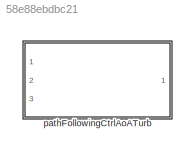
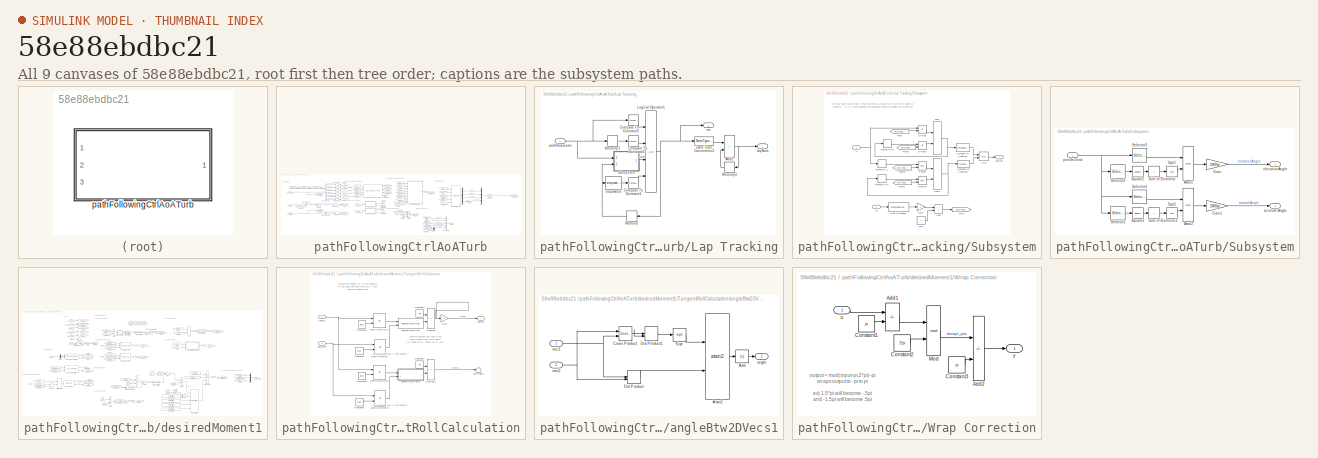
[diagram: thumbnail index - all 9 canvases of the model, root first then tree order]
MODEL slx_58e88ebdbc21
KIND library
CONFIG AbsTol = auto
CONFIG EnableMultiTasking = off
CONFIG FixedStep = auto
CONFIG MaxStep = auto
CONFIG MinStep = auto
CONFIG RelTol = 1e-3
CONFIG SampleTimeConstraint = Unconstrained
CONFIG SolverName = VariableStepAuto
CONFIG StartTime = 0.0
CONFIG StopTime = 10.0
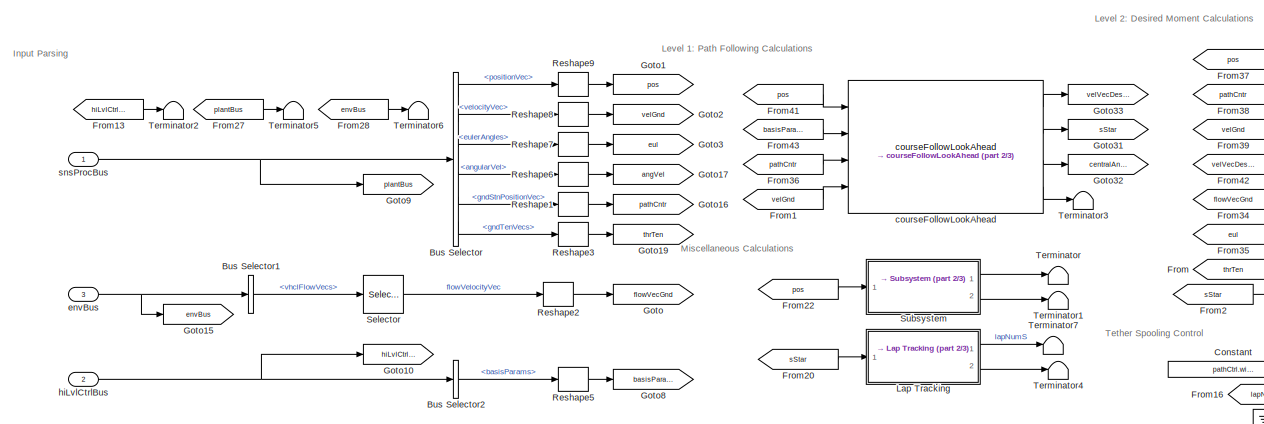
[diagram: pathFollowingCtrlAoATurb - part 1/3, middle left region]
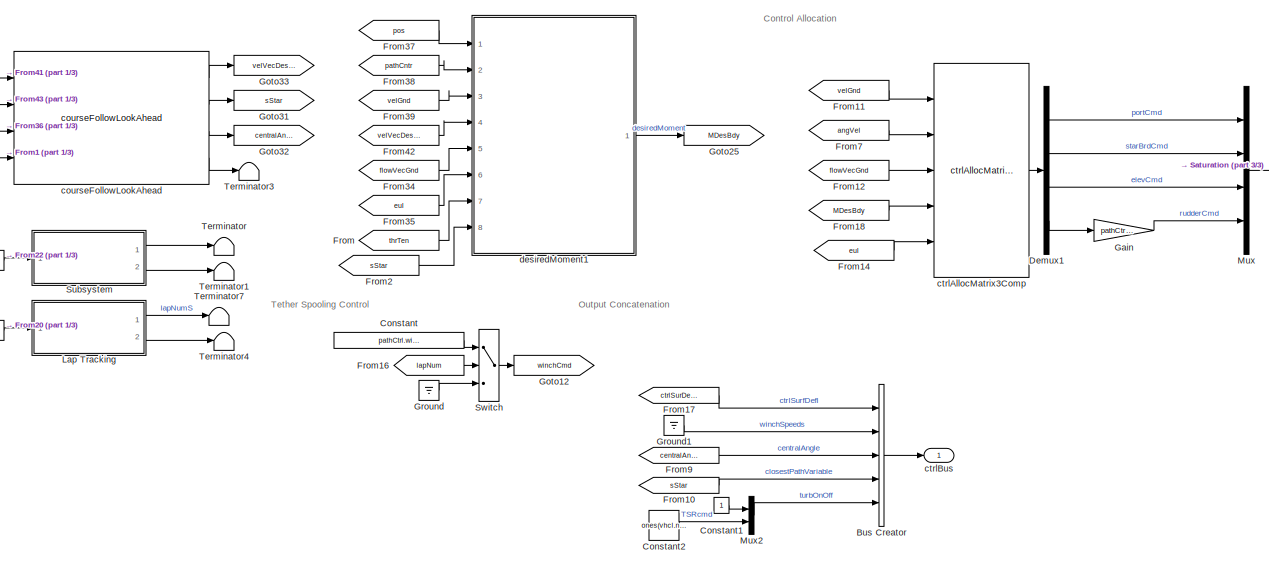
[diagram: pathFollowingCtrlAoATurb - part 2/3, center side, full height]
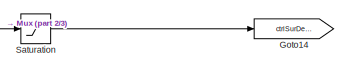
[diagram: pathFollowingCtrlAoATurb - part 3/3, middle right region]
BLOCK [SubSystem] pathFollowingCtrlAoATurb
  InitFcn = initializeBussesFromBlock(gcb)
  LoadFcn = initializeBussesFromBlock(gcb)
  MinAlgLoopOccurrences = on
  Ports = [3, 1]
  RequestExecContextInheritance = off
  StartFcn = initializeBussesFromBlock(gcb)
  VariantControl = strcmpi(FLIGHTCONTROLLER,'pathFollowingControllerManta')
BLOCK [BusCreator] pathFollowingCtrlAoATurb/Bus Creator
  DisplayOption = bar
  InheritFromInputs = on
  Inputs = 5
  Ports = [5, 1]
BLOCK [BusSelector] pathFollowingCtrlAoATurb/Bus Selector
  OutputSignals = positionVec,velocityVec,eulerAngles,angularVel,gndStnPositionVec,gndTenVecs
  Ports = [1, 6]
BLOCK [BusSelector] pathFollowingCtrlAoATurb/Bus Selector1
  OutputSignals = vhclFlowVecs
  Ports = [1, 1]
BLOCK [BusSelector] pathFollowingCtrlAoATurb/Bus Selector2
  OutputSignals = basisParams
  Ports = [1, 1]
BLOCK [Constant] pathFollowingCtrlAoATurb/Constant
  Commented = on
  Value = pathCtrl.winchSpeedIn.Value
BLOCK [Constant] pathFollowingCtrlAoATurb/Constant1
BLOCK [Constant] pathFollowingCtrlAoATurb/Constant2
  Value = ones(vhcl.numTurbines.Value,1)
BLOCK [Demux] pathFollowingCtrlAoATurb/Demux1
  Ports = [1, 4]
BLOCK [From] pathFollowingCtrlAoATurb/From
  GotoTag = thrTen
BLOCK [From] pathFollowingCtrlAoATurb/From1
  GotoTag = velGnd
BLOCK [From] pathFollowingCtrlAoATurb/From10
  GotoTag = sStar
BLOCK [From] pathFollowingCtrlAoATurb/From11
  GotoTag = velGnd
BLOCK [From] pathFollowingCtrlAoATurb/From12
  GotoTag = flowVecGnd
BLOCK [From] pathFollowingCtrlAoATurb/From13
  GotoTag = hiLvlCtrlBus
BLOCK [From] pathFollowingCtrlAoATurb/From14
  GotoTag = eul
BLOCK [From] pathFollowingCtrlAoATurb/From16
  Commented = on
  GotoTag = lapNum
BLOCK [From] pathFollowingCtrlAoATurb/From17
  GotoTag = ctrlSurDefl
BLOCK [From] pathFollowingCtrlAoATurb/From18
  GotoTag = MDesBdy
BLOCK [From] pathFollowingCtrlAoATurb/From2
  GotoTag = sStar
BLOCK [From] pathFollowingCtrlAoATurb/From20
  GotoTag = sStar
BLOCK [From] pathFollowingCtrlAoATurb/From22
  GotoTag = pos
BLOCK [From] pathFollowingCtrlAoATurb/From27
  GotoTag = plantBus
BLOCK [From] pathFollowingCtrlAoATurb/From28
  GotoTag = envBus
BLOCK [From] pathFollowingCtrlAoATurb/From34
  GotoTag = flowVecGnd
BLOCK [From] pathFollowingCtrlAoATurb/From35
  GotoTag = eul
BLOCK [From] pathFollowingCtrlAoATurb/From36
  GotoTag = pathCntr
BLOCK [From] pathFollowingCtrlAoATurb/From37
  GotoTag = pos
BLOCK [From] pathFollowingCtrlAoATurb/From38
  GotoTag = pathCntr
BLOCK [From] pathFollowingCtrlAoATurb/From39
  GotoTag = velGnd
BLOCK [From] pathFollowingCtrlAoATurb/From41
  GotoTag = pos
BLOCK [From] pathFollowingCtrlAoATurb/From42
  GotoTag = velVecDesGnd
BLOCK [From] pathFollowingCtrlAoATurb/From43
  GotoTag = basisParams
BLOCK [From] pathFollowingCtrlAoATurb/From7
  GotoTag = angVel
BLOCK [From] pathFollowingCtrlAoATurb/From9
  GotoTag = centralAngle
BLOCK [Gain] pathFollowingCtrlAoATurb/Gain
  Gain = pathCtrl.rudderGain.Value
BLOCK [Goto] pathFollowingCtrlAoATurb/Goto
  GotoTag = flowVecGnd
BLOCK [Goto] pathFollowingCtrlAoATurb/Goto1
  GotoTag = pos
BLOCK [Goto] pathFollowingCtrlAoATurb/Goto10
  GotoTag = hiLvlCtrlBus
BLOCK [Goto] pathFollowingCtrlAoATurb/Goto12
  Commented = on
  GotoTag = winchCmd
BLOCK [Goto] pathFollowingCtrlAoATurb/Goto14
  GotoTag = ctrlSurDefl
BLOCK [Goto] pathFollowingCtrlAoATurb/Goto15
  GotoTag = envBus
BLOCK [Goto] pathFollowingCtrlAoATurb/Goto16
  GotoTag = pathCntr
BLOCK [Goto] pathFollowingCtrlAoATurb/Goto17
  GotoTag = angVel
BLOCK [Goto] pathFollowingCtrlAoATurb/Goto19
  GotoTag = thrTen
BLOCK [Goto] pathFollowingCtrlAoATurb/Goto2
  GotoTag = velGnd
BLOCK [Goto] pathFollowingCtrlAoATurb/Goto25
  GotoTag = MDesBdy
BLOCK [Goto] pathFollowingCtrlAoATurb/Goto3
  GotoTag = eul
BLOCK [Goto] pathFollowingCtrlAoATurb/Goto31
  GotoTag = sStar
BLOCK [Goto] pathFollowingCtrlAoATurb/Goto32
  GotoTag = centralAngle
BLOCK [Goto] pathFollowingCtrlAoATurb/Goto33
  GotoTag = velVecDesGnd
BLOCK [Goto] pathFollowingCtrlAoATurb/Goto8
  GotoTag = basisParams
BLOCK [Goto] pathFollowingCtrlAoATurb/Goto9
  GotoTag = plantBus
BLOCK [Ground] pathFollowingCtrlAoATurb/Ground
  Commented = on
BLOCK [Ground] pathFollowingCtrlAoATurb/Ground1
BLOCK [SubSystem] pathFollowingCtrlAoATurb/Lap Tracking
  Ports = [1, 2]
  RequestExecContextInheritance = off
BLOCK [Sum] pathFollowingCtrlAoATurb/Lap Tracking/Add2
  IconShape = rectangular
  Ports = [2, 1]
BLOCK [Reference] pathFollowingCtrlAoATurb/Lap Tracking/Compare To Constant1  REF=simulink/Logic and Bit
Operations/Compare
To Constant
  Ports = [1, 1]
  SourceBlock = simulink/Logic and Bit\nOperations/Compare\nTo Constant
  SourceProductBaseCode = SL
  SourceType = Compare To Constant
BLOCK [Reference] pathFollowingCtrlAoATurb/Lap Tracking/Compare To Constant3  REF=simulink/Logic and Bit
Operations/Compare
To Constant
  Ports = [1, 1]
  SourceBlock = simulink/Logic and Bit\nOperations/Compare\nTo Constant
  SourceProductBaseCode = SL
  SourceType = Compare To Constant
BLOCK [Reference] pathFollowingCtrlAoATurb/Lap Tracking/Compare To Constant4  REF=simulink/Logic and Bit
Operations/Compare
To Constant
  Ports = [1, 1]
  SourceBlock = simulink/Logic and Bit\nOperations/Compare\nTo Constant
  SourceProductBaseCode = SL
  SourceType = Compare To Constant
BLOCK [DataTypeConversion] pathFollowingCtrlAoATurb/Lap Tracking/Data Type Conversion2
  OutDataTypeStr = double
  RndMeth = Floor
  SaturateOnIntegerOverflow = off
BLOCK [Logic] pathFollowingCtrlAoATurb/Lap Tracking/Logical Operator1
  AllPortsSameDT = off
  Inputs = 4
  OutDataTypeStr = boolean
  Ports = [4, 1]
BLOCK [Memory] pathFollowingCtrlAoATurb/Lap Tracking/Memory
  InitialCondition = false
BLOCK [Memory] pathFollowingCtrlAoATurb/Lap Tracking/Memory3
BLOCK [Memory] pathFollowingCtrlAoATurb/Lap Tracking/Memory4
BLOCK [SubSystem] pathFollowingCtrlAoATurb/Lap Tracking/Subsystem
  Ports = [2, 1]
  RequestExecContextInheritance = off
BLOCK [Logic] pathFollowingCtrlAoATurb/Lap Tracking/Subsystem/AND
  AllPortsSameDT = off
  OutDataTypeStr = boolean
  Ports = [2, 1]
BLOCK [Sum] pathFollowingCtrlAoATurb/Lap Tracking/Subsystem/Add
  IconShape = rectangular
  Ports = [2, 1]
BLOCK [DataTypeConversion] pathFollowingCtrlAoATurb/Lap Tracking/Subsystem/Cast To Double
  OutDataTypeStr = double
  RndMeth = Floor
  SaturateOnIntegerOverflow = off
BLOCK [Reference] pathFollowingCtrlAoATurb/Lap Tracking/Subsystem/Compare To Constant  REF=simulink/Logic and Bit
Operations/Compare
To Constant
  Ports = [1, 1]
  SourceBlock = simulink/Logic and Bit\nOperations/Compare\nTo Constant
  SourceProductBaseCode = SL
  SourceType = Compare To Constant
BLOCK [Reference] pathFollowingCtrlAoATurb/Lap Tracking/Subsystem/Compare To Constant1  REF=simulink/Logic and Bit
Operations/Compare
To Constant
  Ports = [1, 1]
  SourceBlock = simulink/Logic and Bit\nOperations/Compare\nTo Constant
  SourceProductBaseCode = SL
  SourceType = Compare To Constant
BLOCK [Product] pathFollowingCtrlAoATurb/Lap Tracking/Subsystem/Divide
  Inputs = **
  Ports = [2, 1]
BLOCK [Product] pathFollowingCtrlAoATurb/Lap Tracking/Subsystem/Divide1
  Inputs = **
  Ports = [2, 1]
BLOCK [From] pathFollowingCtrlAoATurb/Lap Tracking/Subsystem/From
  GotoTag = zeroIfReset
BLOCK [From] pathFollowingCtrlAoATurb/Lap Tracking/Subsystem/From1
  GotoTag = zeroIfReset
BLOCK [From] pathFollowingCtrlAoATurb/Lap Tracking/Subsystem/From2
  GotoTag = zeroIfReset
BLOCK [From] pathFollowingCtrlAoATurb/Lap Tracking/Subsystem/From3
  GotoTag = zeroIfReset
BLOCK [Gain] pathFollowingCtrlAoATurb/Lap Tracking/Subsystem/Gain
  Gain = -1
BLOCK [Goto] pathFollowingCtrlAoATurb/Lap Tracking/Subsystem/Goto
  GotoTag = zeroIfReset
BLOCK [MinMax] pathFollowingCtrlAoATurb/Lap Tracking/Subsystem/Max
  Function = max
  Inputs = 2
  Ports = [2, 1]
BLOCK [MinMax] pathFollowingCtrlAoATurb/Lap Tracking/Subsystem/Max1
  Inputs = 2
  Ports = [2, 1]
BLOCK [Constant] pathFollowingCtrlAoATurb/Lap Tracking/Subsystem/One
  OutDataTypeStr = Inherit: Inherit via back propagation
BLOCK [Math] pathFollowingCtrlAoATurb/Lap Tracking/Subsystem/Power
  Operator = pow
  Ports = [2, 1]
BLOCK [Math] pathFollowingCtrlAoATurb/Lap Tracking/Subsystem/Power1
  Operator = pow
  Ports = [2, 1]
BLOCK [Inport] pathFollowingCtrlAoATurb/Lap Tracking/Subsystem/S
BLOCK [Memory] pathFollowingCtrlAoATurb/Lap Tracking/Subsystem/memoryIC1
  InitialCondition = 1
BLOCK [Memory] pathFollowingCtrlAoATurb/Lap Tracking/Subsystem/memoryIC=0
BLOCK [Memory] pathFollowingCtrlAoATurb/Lap Tracking/Subsystem/memoryIC=1
  InitialCondition = 1
BLOCK [Outport] pathFollowingCtrlAoATurb/Lap Tracking/Subsystem/realLap
BLOCK [Inport] pathFollowingCtrlAoATurb/Lap Tracking/Subsystem/rst
  Port = 2
BLOCK [Outport] pathFollowingCtrlAoATurb/Lap Tracking/lapNum
  VectorParamsAs1DForOutWhenUnconnected = off
BLOCK [Inport] pathFollowingCtrlAoATurb/Lap Tracking/pathParameter
BLOCK [Outport] pathFollowingCtrlAoATurb/Lap Tracking/rst
  Port = 2
  VectorParamsAs1DForOutWhenUnconnected = off
BLOCK [Reference] pathFollowingCtrlAoATurb/Lap Tracking/stopwatch  REF=stopwatch_ul/stopwatch  (lib defined in slx_5231e8830116, slx_6b86a6863970)
  Ports = [1, 1]
  SourceBlock = stopwatch_ul/stopwatch
  SourceType = SubSystem
BLOCK [Mux] pathFollowingCtrlAoATurb/Mux
  DisplayOption = bar
  Ports = [4, 1]
BLOCK [Mux] pathFollowingCtrlAoATurb/Mux2
  DisplayOption = bar
  Inputs = 2
  Ports = [2, 1]
BLOCK [Reshape] pathFollowingCtrlAoATurb/Reshape1
  OutputDimensionality = Column vector (2-D)
  Ports = [1, 1]
BLOCK [Reshape] pathFollowingCtrlAoATurb/Reshape2
  OutputDimensionality = Column vector (2-D)
  Ports = [1, 1]
BLOCK [Reshape] pathFollowingCtrlAoATurb/Reshape3
  OutputDimensionality = Column vector (2-D)
  Ports = [1, 1]
BLOCK [Reshape] pathFollowingCtrlAoATurb/Reshape5
  OutputDimensionality = Column vector (2-D)
  Ports = [1, 1]
BLOCK [Reshape] pathFollowingCtrlAoATurb/Reshape6
  OutputDimensionality = Column vector (2-D)
  Ports = [1, 1]
BLOCK [Reshape] pathFollowingCtrlAoATurb/Reshape7
  OutputDimensionality = Column vector (2-D)
  Ports = [1, 1]
BLOCK [Reshape] pathFollowingCtrlAoATurb/Reshape8
  OutputDimensionality = Column vector (2-D)
  Ports = [1, 1]
BLOCK [Reshape] pathFollowingCtrlAoATurb/Reshape9
  OutputDimensionality = Column vector (2-D)
  Ports = [1, 1]
BLOCK [Saturate] pathFollowingCtrlAoATurb/Saturation
  LowerLimit = -30
  UpperLimit = 30
BLOCK [Selector] pathFollowingCtrlAoATurb/Selector
  IndexOptions = Select all,Index vector (dialog)
  Indices = [1 3],5
  InputPortWidth = 3
  NumberOfDimensions = 2
  OutputSizes = 1,1
  Ports = [1, 1]
BLOCK [SubSystem] pathFollowingCtrlAoATurb/Subsystem
  Ports = [1, 2]
  RequestExecContextInheritance = off
BLOCK [Trigonometry] pathFollowingCtrlAoATurb/Subsystem/Atan1
  Operator = atan2
  Ports = [2, 1]
BLOCK [Trigonometry] pathFollowingCtrlAoATurb/Subsystem/Atan2
  Operator = atan2
  Ports = [2, 1]
BLOCK [Gain] pathFollowingCtrlAoATurb/Subsystem/Gain
  Gain = 180/pi
BLOCK [Gain] pathFollowingCtrlAoATurb/Subsystem/Gain1
  Gain = 180/pi
BLOCK [Selector] pathFollowingCtrlAoATurb/Subsystem/Selector1
  IndexOptions = Index vector (dialog)
  Indices = 1
  InputPortWidth = 3
  OutputSizes = 1
  Ports = [1, 1]
BLOCK [Selector] pathFollowingCtrlAoATurb/Subsystem/Selector2
  IndexOptions = Index vector (dialog)
  Indices = [1 2]
  InputPortWidth = 3
  OutputSizes = 1
  Ports = [1, 1]
BLOCK [Selector] pathFollowingCtrlAoATurb/Subsystem/Selector3
  IndexOptions = Index vector (dialog)
  Indices = 3
  InputPortWidth = 3
  OutputSizes = 1
  Ports = [1, 1]
BLOCK [Selector] pathFollowingCtrlAoATurb/Subsystem/Selector4
  IndexOptions = Index vector (dialog)
  Indices = 2
  InputPortWidth = 3
  OutputSizes = 1
  Ports = [1, 1]
BLOCK [Sqrt] pathFollowingCtrlAoATurb/Subsystem/Sqrt1
BLOCK [Sqrt] pathFollowingCtrlAoATurb/Subsystem/Sqrt2
BLOCK [Math] pathFollowingCtrlAoATurb/Subsystem/Square1
  Operator = square
  Ports = [1, 1]
  SignedPower = on
BLOCK [Math] pathFollowingCtrlAoATurb/Subsystem/Square2
  Operator = square
  Ports = [1, 1]
  SignedPower = on
BLOCK [Sum] pathFollowingCtrlAoATurb/Subsystem/Sum of Elements
  IconShape = rectangular
  Inputs = +
  Ports = [1, 1]
BLOCK [Sum] pathFollowingCtrlAoATurb/Subsystem/Sum of Elements1
  IconShape = rectangular
  Inputs = +
  Ports = [1, 1]
BLOCK [Outport] pathFollowingCtrlAoATurb/Subsystem/azimuth Angle
  Port = 2
BLOCK [Outport] pathFollowingCtrlAoATurb/Subsystem/elevationAngle
BLOCK [Inport] pathFollowingCtrlAoATurb/Subsystem/posVecGnd
BLOCK [Switch] pathFollowingCtrlAoATurb/Switch
  Commented = on
  InputSameDT = off
  SaturateOnIntegerOverflow = off
  Threshold = fltCtrl.firstSpoolLap.Value
BLOCK [Terminator] pathFollowingCtrlAoATurb/Terminator
BLOCK [Terminator] pathFollowingCtrlAoATurb/Terminator1
BLOCK [Terminator] pathFollowingCtrlAoATurb/Terminator2
BLOCK [Terminator] pathFollowingCtrlAoATurb/Terminator3
BLOCK [Terminator] pathFollowingCtrlAoATurb/Terminator4
BLOCK [Terminator] pathFollowingCtrlAoATurb/Terminator5
BLOCK [Terminator] pathFollowingCtrlAoATurb/Terminator6
BLOCK [Terminator] pathFollowingCtrlAoATurb/Terminator7
BLOCK [Reference] pathFollowingCtrlAoATurb/courseFollowLookAhead  REF=courseFollowLookAhead_cl/courseFollowLookAhead
  Ports = [4, 4]
  SourceBlock = courseFollowLookAhead_cl/courseFollowLookAhead
  SourceType = SubSystem
BLOCK [Reference] pathFollowingCtrlAoATurb/ctrlAllocMatrix3Comp  REF=ctrlAllocMatrix3Comp_cl/ctrlAllocMatrix3Comp
  Ports = [5, 1]
  SourceBlock = ctrlAllocMatrix3Comp_cl/ctrlAllocMatrix3Comp
BLOCK [Outport] pathFollowingCtrlAoATurb/ctrlBus
  OutDataTypeStr = Bus: fltCtrlBus
  VectorParamsAs1DForOutWhenUnconnected = off
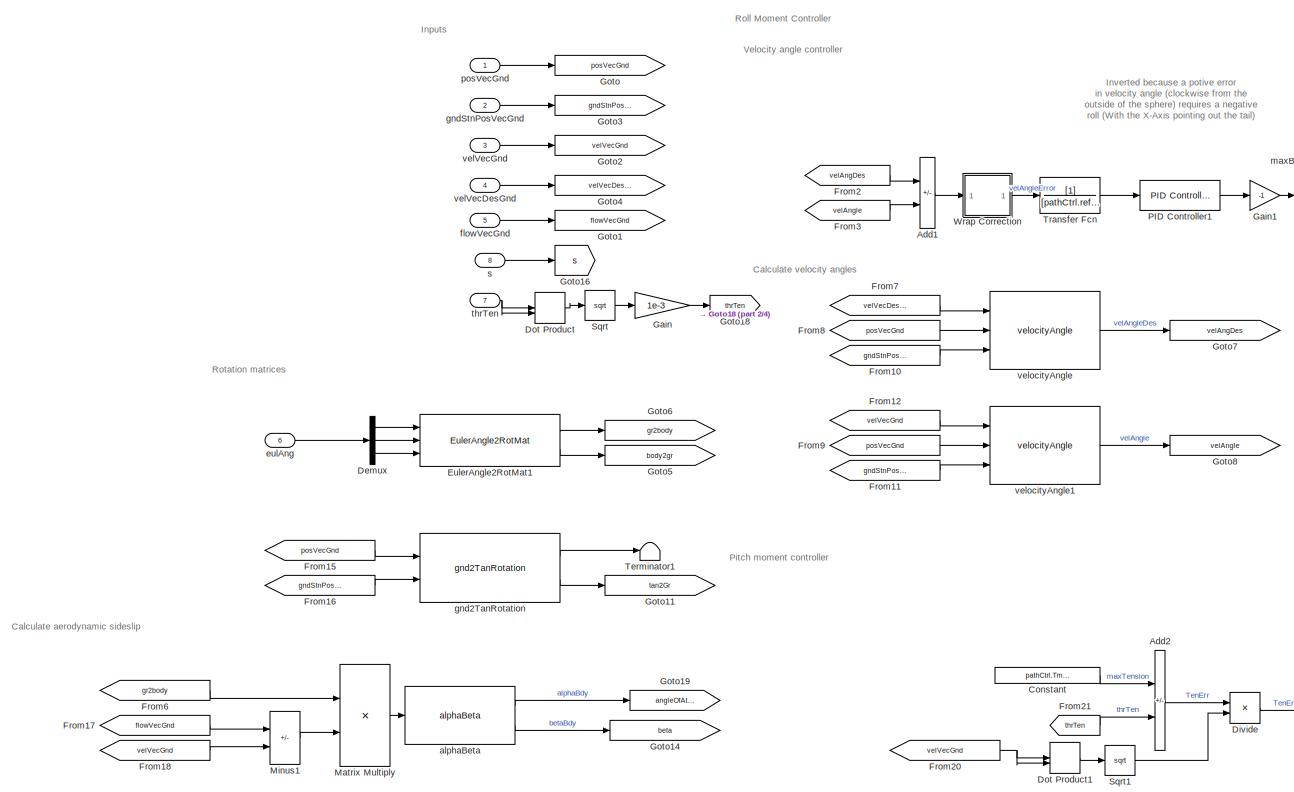
[diagram: pathFollowingCtrlAoATurb/desiredMoment1 - part 1/4, left side, full height]
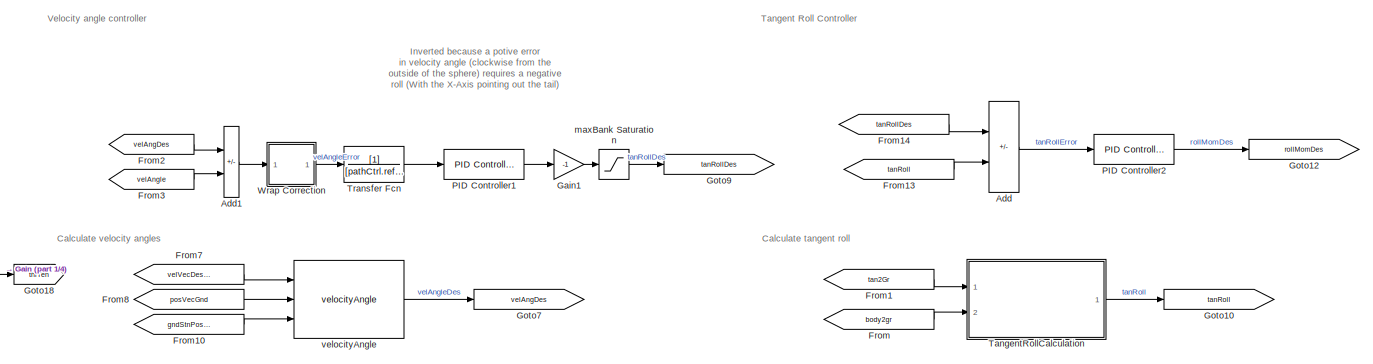
[diagram: pathFollowingCtrlAoATurb/desiredMoment1 - part 2/4, top center region]
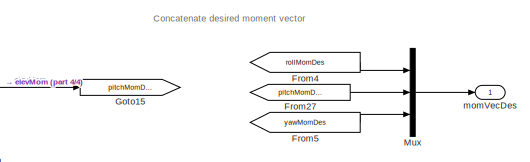
[diagram: pathFollowingCtrlAoATurb/desiredMoment1 - part 3/4, middle right region]
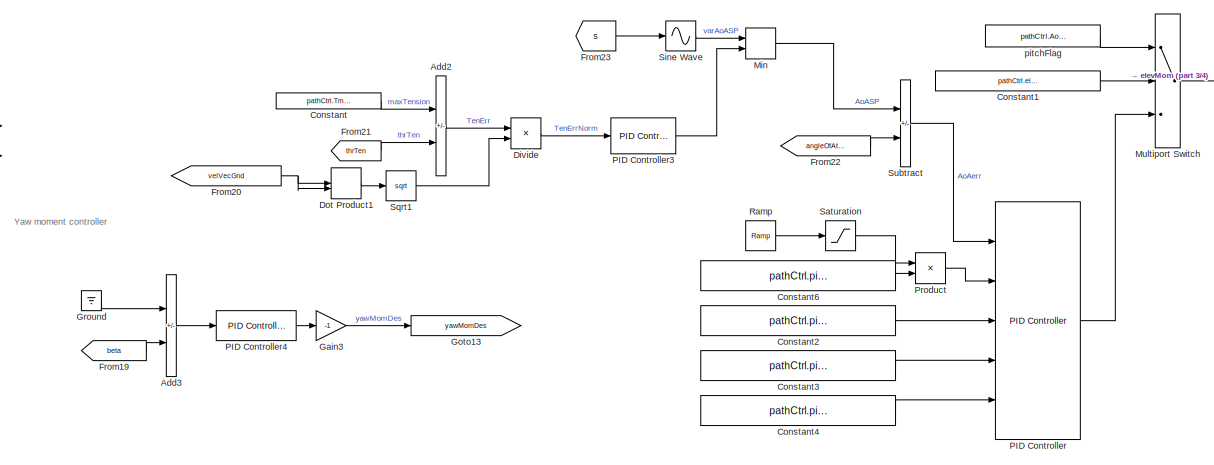
[diagram: pathFollowingCtrlAoATurb/desiredMoment1 - part 4/4, bottom center region]
BLOCK [SubSystem] pathFollowingCtrlAoATurb/desiredMoment1
  Ports = [8, 1]
  RequestExecContextInheritance = off
BLOCK [Sum] pathFollowingCtrlAoATurb/desiredMoment1/Add
  IconShape = rectangular
  Inputs = +-
  Ports = [2, 1]
BLOCK [Sum] pathFollowingCtrlAoATurb/desiredMoment1/Add1
  IconShape = rectangular
  Inputs = +-
  Ports = [2, 1]
BLOCK [Sum] pathFollowingCtrlAoATurb/desiredMoment1/Add2
  IconShape = rectangular
  Inputs = +-
  Ports = [2, 1]
BLOCK [Sum] pathFollowingCtrlAoATurb/desiredMoment1/Add3
  IconShape = rectangular
  Inputs = +-
  Ports = [2, 1]
BLOCK [Constant] pathFollowingCtrlAoATurb/desiredMoment1/Constant
  Value = pathCtrl.Tmax.Value
BLOCK [Constant] pathFollowingCtrlAoATurb/desiredMoment1/Constant1
  Value = pathCtrl.elevatorConst.Value
BLOCK [Constant] pathFollowingCtrlAoATurb/desiredMoment1/Constant2
  Value = pathCtrl.pitchMoment.ki.Value
BLOCK [Constant] pathFollowingCtrlAoATurb/desiredMoment1/Constant3
  Value = pathCtrl.pitchMoment.kd.Value
BLOCK [Constant] pathFollowingCtrlAoATurb/desiredMoment1/Constant4
  Value = pathCtrl.pitchMoment.tau.Value
BLOCK [Constant] pathFollowingCtrlAoATurb/desiredMoment1/Constant6
  Value = pathCtrl.pitchMoment.kp.Value
BLOCK [Demux] pathFollowingCtrlAoATurb/desiredMoment1/Demux
  Outputs = 3
  Ports = [1, 3]
BLOCK [Product] pathFollowingCtrlAoATurb/desiredMoment1/Divide
  Inputs = */
  Ports = [2, 1]
BLOCK [DotProduct] pathFollowingCtrlAoATurb/desiredMoment1/Dot Product
  OutDataTypeStr = Inherit: Inherit via internal rule
BLOCK [DotProduct] pathFollowingCtrlAoATurb/desiredMoment1/Dot Product1
  OutDataTypeStr = Inherit: Inherit via internal rule
BLOCK [Reference] pathFollowingCtrlAoATurb/desiredMoment1/EulerAngle2RotMat1  REF=eulAng2RotMat_ul/EulerAngle2RotMat
  Ports = [3, 2]
  SourceBlock = eulAng2RotMat_ul/EulerAngle2RotMat
  SourceType = SubSystem
BLOCK [From] pathFollowingCtrlAoATurb/desiredMoment1/From
  GotoTag = body2gr
BLOCK [From] pathFollowingCtrlAoATurb/desiredMoment1/From1
  GotoTag = tan2Gr
BLOCK [From] pathFollowingCtrlAoATurb/desiredMoment1/From10
  GotoTag = gndStnPosVecGnd
BLOCK [From] pathFollowingCtrlAoATurb/desiredMoment1/From11
  GotoTag = gndStnPosVecGnd
BLOCK [From] pathFollowingCtrlAoATurb/desiredMoment1/From12
  GotoTag = velVecGnd
BLOCK [From] pathFollowingCtrlAoATurb/desiredMoment1/From13
  GotoTag = tanRoll
BLOCK [From] pathFollowingCtrlAoATurb/desiredMoment1/From14
  GotoTag = tanRollDes
BLOCK [From] pathFollowingCtrlAoATurb/desiredMoment1/From15
  GotoTag = posVecGnd
BLOCK [From] pathFollowingCtrlAoATurb/desiredMoment1/From16
  GotoTag = gndStnPosVecGnd
BLOCK [From] pathFollowingCtrlAoATurb/desiredMoment1/From17
  GotoTag = flowVecGnd
BLOCK [From] pathFollowingCtrlAoATurb/desiredMoment1/From18
  GotoTag = velVecGnd
BLOCK [From] pathFollowingCtrlAoATurb/desiredMoment1/From19
  GotoTag = beta
BLOCK [From] pathFollowingCtrlAoATurb/desiredMoment1/From2
  GotoTag = velAngDes
BLOCK [From] pathFollowingCtrlAoATurb/desiredMoment1/From20
  GotoTag = velVecGnd
BLOCK [From] pathFollowingCtrlAoATurb/desiredMoment1/From21
  GotoTag = thrTen
BLOCK [From] pathFollowingCtrlAoATurb/desiredMoment1/From22
  GotoTag = angleOfAttack
BLOCK [From] pathFollowingCtrlAoATurb/desiredMoment1/From23
  GotoTag = s
BLOCK [From] pathFollowingCtrlAoATurb/desiredMoment1/From27
  GotoTag = pitchMomDes
BLOCK [From] pathFollowingCtrlAoATurb/desiredMoment1/From3
  GotoTag = velAngle
BLOCK [From] pathFollowingCtrlAoATurb/desiredMoment1/From4
  GotoTag = rollMomDes
BLOCK [From] pathFollowingCtrlAoATurb/desiredMoment1/From5
  GotoTag = yawMomDes
BLOCK [From] pathFollowingCtrlAoATurb/desiredMoment1/From6
  GotoTag = gr2body
BLOCK [From] pathFollowingCtrlAoATurb/desiredMoment1/From7
  GotoTag = velVecDesGnd
BLOCK [From] pathFollowingCtrlAoATurb/desiredMoment1/From8
  GotoTag = posVecGnd
BLOCK [From] pathFollowingCtrlAoATurb/desiredMoment1/From9
  GotoTag = posVecGnd
BLOCK [Gain] pathFollowingCtrlAoATurb/desiredMoment1/Gain
  Gain = 1e-3
BLOCK [Gain] pathFollowingCtrlAoATurb/desiredMoment1/Gain1
  Gain = -1
BLOCK [Gain] pathFollowingCtrlAoATurb/desiredMoment1/Gain3
  Gain = -1
BLOCK [Goto] pathFollowingCtrlAoATurb/desiredMoment1/Goto
  GotoTag = posVecGnd
BLOCK [Goto] pathFollowingCtrlAoATurb/desiredMoment1/Goto1
  GotoTag = flowVecGnd
BLOCK [Goto] pathFollowingCtrlAoATurb/desiredMoment1/Goto10
  GotoTag = tanRoll
BLOCK [Goto] pathFollowingCtrlAoATurb/desiredMoment1/Goto11
  GotoTag = tan2Gr
BLOCK [Goto] pathFollowingCtrlAoATurb/desiredMoment1/Goto12
  GotoTag = rollMomDes
BLOCK [Goto] pathFollowingCtrlAoATurb/desiredMoment1/Goto13
  GotoTag = yawMomDes
BLOCK [Goto] pathFollowingCtrlAoATurb/desiredMoment1/Goto14
  GotoTag = beta
BLOCK [Goto] pathFollowingCtrlAoATurb/desiredMoment1/Goto15
  GotoTag = pitchMomDes
BLOCK [Goto] pathFollowingCtrlAoATurb/desiredMoment1/Goto16
  GotoTag = s
BLOCK [Goto] pathFollowingCtrlAoATurb/desiredMoment1/Goto18
  GotoTag = thrTen
BLOCK [Goto] pathFollowingCtrlAoATurb/desiredMoment1/Goto19
  GotoTag = angleOfAttack
BLOCK [Goto] pathFollowingCtrlAoATurb/desiredMoment1/Goto2
  GotoTag = velVecGnd
BLOCK [Goto] pathFollowingCtrlAoATurb/desiredMoment1/Goto3
  GotoTag = gndStnPosVecGnd
BLOCK [Goto] pathFollowingCtrlAoATurb/desiredMoment1/Goto4
  GotoTag = velVecDesGnd
BLOCK [Goto] pathFollowingCtrlAoATurb/desiredMoment1/Goto5
  GotoTag = body2gr
BLOCK [Goto] pathFollowingCtrlAoATurb/desiredMoment1/Goto6
  GotoTag = gr2body
BLOCK [Goto] pathFollowingCtrlAoATurb/desiredMoment1/Goto7
  GotoTag = velAngDes
BLOCK [Goto] pathFollowingCtrlAoATurb/desiredMoment1/Goto8
  GotoTag = velAngle
BLOCK [Goto] pathFollowingCtrlAoATurb/desiredMoment1/Goto9
  GotoTag = tanRollDes
BLOCK [Ground] pathFollowingCtrlAoATurb/desiredMoment1/Ground
BLOCK [Product] pathFollowingCtrlAoATurb/desiredMoment1/Matrix Multiply
  Multiplication = Matrix(*)
  Ports = [2, 1]
BLOCK [MinMax] pathFollowingCtrlAoATurb/desiredMoment1/Min
  Inputs = 2
  Ports = [2, 1]
BLOCK [Sum] pathFollowingCtrlAoATurb/desiredMoment1/Minus1
  IconShape = rectangular
  Inputs = +-
  Ports = [2, 1]
BLOCK [MultiPortSwitch] pathFollowingCtrlAoATurb/desiredMoment1/Multiport Switch
  DataPortIndices = {0,1}
  DataPortOrder = Specify indices
  InputSameDT = off
  Inputs = 2
  Ports = [3, 1]
  SaturateOnIntegerOverflow = off
BLOCK [Mux] pathFollowingCtrlAoATurb/desiredMoment1/Mux
  DisplayOption = bar
  Inputs = 3
  Ports = [3, 1]
BLOCK [Reference] pathFollowingCtrlAoATurb/desiredMoment1/PID Controller  REF=slpidlib/PID Controller
  Ports = [5, 1]
  SourceBlock = slpidlib/PID Controller
  SourceProductBaseCode = SL
  SourceType = PID 1dof
BLOCK [Reference] pathFollowingCtrlAoATurb/desiredMoment1/PID Controller1  REF=slpidlib/PID Controller
  Ports = [1, 1]
  SourceBlock = slpidlib/PID Controller
  SourceProductBaseCode = SL
  SourceType = PID 1dof
BLOCK [Reference] pathFollowingCtrlAoATurb/desiredMoment1/PID Controller2  REF=slpidlib/PID Controller
  Ports = [1, 1]
  SourceBlock = slpidlib/PID Controller
  SourceProductBaseCode = SL
  SourceType = PID 1dof
BLOCK [Reference] pathFollowingCtrlAoATurb/desiredMoment1/PID Controller3  REF=slpidlib/PID Controller
  Ports = [1, 1]
  SourceBlock = slpidlib/PID Controller
  SourceProductBaseCode = SL
  SourceType = PID 1dof
BLOCK [Reference] pathFollowingCtrlAoATurb/desiredMoment1/PID Controller4  REF=slpidlib/PID Controller
  Ports = [1, 1]
  SourceBlock = slpidlib/PID Controller
  SourceProductBaseCode = SL
  SourceType = PID 1dof
BLOCK [Product] pathFollowingCtrlAoATurb/desiredMoment1/Product
  Ports = [2, 1]
BLOCK [Reference] pathFollowingCtrlAoATurb/desiredMoment1/Ramp  REF=simulink/Sources/Ramp
  Ports = [0, 1]
  SourceBlock = simulink/Sources/Ramp
  SourceProductBaseCode = SL
  SourceType = Ramp
BLOCK [Saturate] pathFollowingCtrlAoATurb/desiredMoment1/Saturation
  LowerLimit = 0.2
  UpperLimit = 1
BLOCK [Sin] pathFollowingCtrlAoATurb/desiredMoment1/Sine Wave
  Amplitude = 1*pi/180
  Bias = 15*pi/180
  Frequency = 4*pi
  Phase = pi/2
  Ports = [1, 1]
  SampleTime = 0
  TimeSource = Use external signal
BLOCK [Sqrt] pathFollowingCtrlAoATurb/desiredMoment1/Sqrt
BLOCK [Sqrt] pathFollowingCtrlAoATurb/desiredMoment1/Sqrt1
BLOCK [Sum] pathFollowingCtrlAoATurb/desiredMoment1/Subtract
  IconShape = rectangular
  Inputs = +-
  Ports = [2, 1]
BLOCK [SubSystem] pathFollowingCtrlAoATurb/desiredMoment1/TangentRollCalculation
  Ports = [2, 1]
  RequestExecContextInheritance = off
BLOCK [Constant] pathFollowingCtrlAoATurb/desiredMoment1/TangentRollCalculation/Constant1
  Value = pi/2
BLOCK [Constant] pathFollowingCtrlAoATurb/desiredMoment1/TangentRollCalculation/Constant2
  Value = pi/2
BLOCK [Constant] pathFollowingCtrlAoATurb/desiredMoment1/TangentRollCalculation/Constant3
  Value = [0 1 0]'
BLOCK [Constant] pathFollowingCtrlAoATurb/desiredMoment1/TangentRollCalculation/Constant4
  Value = [0 0 1]'
BLOCK [Constant] pathFollowingCtrlAoATurb/desiredMoment1/TangentRollCalculation/Constant5
  Value = [1 0 0]'
BLOCK [Constant] pathFollowingCtrlAoATurb/desiredMoment1/TangentRollCalculation/Constant6
  Value = [0 0 1]'
BLOCK [Gain] pathFollowingCtrlAoATurb/desiredMoment1/TangentRollCalculation/Gain
  Gain = -1
BLOCK [Product] pathFollowingCtrlAoATurb/desiredMoment1/TangentRollCalculation/Matrix Multiply
  Multiplication = Matrix(*)
  Ports = [2, 1]
BLOCK [Product] pathFollowingCtrlAoATurb/desiredMoment1/TangentRollCalculation/Matrix Multiply1
  Multiplication = Matrix(*)
  Ports = [2, 1]
BLOCK [Product] pathFollowingCtrlAoATurb/desiredMoment1/TangentRollCalculation/Matrix Multiply2
  Multiplication = Matrix(*)
  Ports = [2, 1]
BLOCK [Product] pathFollowingCtrlAoATurb/desiredMoment1/TangentRollCalculation/Matrix Multiply3
  Multiplication = Matrix(*)
  Ports = [2, 1]
BLOCK [Sum] pathFollowingCtrlAoATurb/desiredMoment1/TangentRollCalculation/Subtract
  IconShape = rectangular
  Inputs = +-
  Ports = [2, 1]
BLOCK [Sum] pathFollowingCtrlAoATurb/desiredMoment1/TangentRollCalculation/Subtract1
  IconShape = rectangular
  Inputs = +-
  Ports = [2, 1]
BLOCK [Terminator] pathFollowingCtrlAoATurb/desiredMoment1/TangentRollCalculation/Terminator
BLOCK [Reference] pathFollowingCtrlAoATurb/desiredMoment1/TangentRollCalculation/angleBtw2DVecs  REF=angleBtw2Vecs_ul/angleBtw2DVecs
  Ports = [2, 1]
  SourceBlock = angleBtw2Vecs_ul/angleBtw2DVecs
  SourceType = SubSystem
BLOCK [SubSystem] pathFollowingCtrlAoATurb/desiredMoment1/TangentRollCalculation/angleBtw2DVecs1
  Ports = [2, 1]
  RequestExecContextInheritance = off
BLOCK [Abs] pathFollowingCtrlAoATurb/desiredMoment1/TangentRollCalculation/angleBtw2DVecs1/Abs
  SaturateOnIntegerOverflow = off
BLOCK [Trigonometry] pathFollowingCtrlAoATurb/desiredMoment1/TangentRollCalculation/angleBtw2DVecs1/Atan2
  Operator = atan2
  Ports = [2, 1]
BLOCK [Reference] pathFollowingCtrlAoATurb/desiredMoment1/TangentRollCalculation/angleBtw2DVecs1/Cross Product  REF=vrlib/Utilities/Cross Product
  Ports = [2, 1]
  SourceBlock = vrlib/Utilities/Cross Product
  SourceProductBaseCode = SL
  SourceType = Cross Product
BLOCK [DotProduct] pathFollowingCtrlAoATurb/desiredMoment1/TangentRollCalculation/angleBtw2DVecs1/Dot Product
  OutDataTypeStr = Inherit: Inherit via internal rule
BLOCK [DotProduct] pathFollowingCtrlAoATurb/desiredMoment1/TangentRollCalculation/angleBtw2DVecs1/Dot Product1
  OutDataTypeStr = Inherit: Inherit via internal rule
BLOCK [Sqrt] pathFollowingCtrlAoATurb/desiredMoment1/TangentRollCalculation/angleBtw2DVecs1/Sqrt
BLOCK [Outport] pathFollowingCtrlAoATurb/desiredMoment1/TangentRollCalculation/angleBtw2DVecs1/angle
  VectorParamsAs1DForOutWhenUnconnected = off
BLOCK [Inport] pathFollowingCtrlAoATurb/desiredMoment1/TangentRollCalculation/angleBtw2DVecs1/vec1
BLOCK [Inport] pathFollowingCtrlAoATurb/desiredMoment1/TangentRollCalculation/angleBtw2DVecs1/vec2
  Port = 2
BLOCK [Inport] pathFollowingCtrlAoATurb/desiredMoment1/TangentRollCalculation/bdy2Inert
  Port = 2
BLOCK [Inport] pathFollowingCtrlAoATurb/desiredMoment1/TangentRollCalculation/tan2Gr
BLOCK [Outport] pathFollowingCtrlAoATurb/desiredMoment1/TangentRollCalculation/tanRoll
  VectorParamsAs1DForOutWhenUnconnected = off
BLOCK [Terminator] pathFollowingCtrlAoATurb/desiredMoment1/Terminator1
BLOCK [TransferFcn] pathFollowingCtrlAoATurb/desiredMoment1/Transfer Fcn
  Denominator = [pathCtrl.refFiltTau.Value 1]
BLOCK [SubSystem] pathFollowingCtrlAoATurb/desiredMoment1/Wrap Correction
  Ports = [1, 1]
  RequestExecContextInheritance = off
BLOCK [Sum] pathFollowingCtrlAoATurb/desiredMoment1/Wrap Correction/Add1
  IconShape = rectangular
  Inputs = +-
  Ports = [2, 1]
BLOCK [Sum] pathFollowingCtrlAoATurb/desiredMoment1/Wrap Correction/Add2
  IconShape = rectangular
  Inputs = +-
  Ports = [2, 1]
BLOCK [Constant] pathFollowingCtrlAoATurb/desiredMoment1/Wrap Correction/Constant1
  Value = pi
BLOCK [Constant] pathFollowingCtrlAoATurb/desiredMoment1/Wrap Correction/Constant2
  Value = 2*pi
BLOCK [Constant] pathFollowingCtrlAoATurb/desiredMoment1/Wrap Correction/Constant3
  Value = pi
BLOCK [Math] pathFollowingCtrlAoATurb/desiredMoment1/Wrap Correction/Mod
  Operator = mod
  Ports = [2, 1]
  SignedPower = on
BLOCK [Inport] pathFollowingCtrlAoATurb/desiredMoment1/Wrap Correction/u
BLOCK [Outport] pathFollowingCtrlAoATurb/desiredMoment1/Wrap Correction/y
  VectorParamsAs1DForOutWhenUnconnected = off
BLOCK [Reference] pathFollowingCtrlAoATurb/desiredMoment1/alphaBeta  REF=alphaBeta_ul/alphaBeta
  Ports = [1, 2]
  SourceBlock = alphaBeta_ul/alphaBeta
  SourceType = SubSystem
BLOCK [Inport] pathFollowingCtrlAoATurb/desiredMoment1/eulAng
  Port = 6
BLOCK [Inport] pathFollowingCtrlAoATurb/desiredMoment1/flowVecGnd
  Port = 5
BLOCK [Reference] pathFollowingCtrlAoATurb/desiredMoment1/gnd2TanRotation  REF=gnd2TanRotation_ul/gnd2TanRotation
  Ports = [2, 2]
  SourceBlock = gnd2TanRotation_ul/gnd2TanRotation
  SourceType = SubSystem
BLOCK [Inport] pathFollowingCtrlAoATurb/desiredMoment1/gndStnPosVecGnd
  Port = 2
BLOCK [Saturate] pathFollowingCtrlAoATurb/desiredMoment1/maxBank Saturation
  LowerLimit = pathCtrl.maxBank.lowerLimit.Value
  UpperLimit = pathCtrl.maxBank.upperLimit.Value
BLOCK [Outport] pathFollowingCtrlAoATurb/desiredMoment1/momVecDes
  VectorParamsAs1DForOutWhenUnconnected = off
BLOCK [Constant] pathFollowingCtrlAoATurb/desiredMoment1/pitchFlag
  Value = pathCtrl.AoACtrl.Value
BLOCK [Inport] pathFollowingCtrlAoATurb/desiredMoment1/posVecGnd
BLOCK [Inport] pathFollowingCtrlAoATurb/desiredMoment1/s
  Port = 8
BLOCK [Inport] pathFollowingCtrlAoATurb/desiredMoment1/thrTen
  Port = 7
BLOCK [Inport] pathFollowingCtrlAoATurb/desiredMoment1/velVecDesGnd
  Port = 4
BLOCK [Inport] pathFollowingCtrlAoATurb/desiredMoment1/velVecGnd
  Port = 3
BLOCK [Reference] pathFollowingCtrlAoATurb/desiredMoment1/velocityAngle  REF=velocityAngle_ul/velocityAngle
  Ports = [3, 1]
  SourceBlock = velocityAngle_ul/velocityAngle
  SourceType = SubSystem
BLOCK [Reference] pathFollowingCtrlAoATurb/desiredMoment1/velocityAngle1  REF=velocityAngle_ul/velocityAngle
  Ports = [3, 1]
  SourceBlock = velocityAngle_ul/velocityAngle
  SourceType = SubSystem
BLOCK [Inport] pathFollowingCtrlAoATurb/envBus
  OutDataTypeStr = Bus: envBus
  Port = 3
BLOCK [Inport] pathFollowingCtrlAoATurb/hiLvlCtrlBus
  OutDataTypeStr = Bus: hiLvlCtrlBus
  Port = 2
BLOCK [Inport] pathFollowingCtrlAoATurb/snsProcBus
  OutDataTypeStr = Bus: sensorsProcessingBus
ANNOTATION pathFollowingCtrlAoATurb: Control Allocation
ANNOTATION pathFollowingCtrlAoATurb: Input Parsing
ANNOTATION pathFollowingCtrlAoATurb: Level 1: Path Following Calculations
ANNOTATION pathFollowingCtrlAoATurb: Level 2: Desired Moment Calculations
ANNOTATION pathFollowingCtrlAoATurb: Miscellaneous Calculations
ANNOTATION pathFollowingCtrlAoATurb: Output Concatenation
ANNOTATION pathFollowingCtrlAoATurb: Tether Spooling Control
ANNOTATION pathFollowingCtrlAoATurb/Lap Tracking/Subsystem: this may have issues when it starts up after a hiatus for a multicycle spool in Hopefully, it will work because the reasonable spooling ranges are already set
ANNOTATION pathFollowingCtrlAoATurb/desiredMoment1: Calculate aerodynamic sideslip
ANNOTATION pathFollowingCtrlAoATurb/desiredMoment1: Calculate tangent roll
ANNOTATION pathFollowingCtrlAoATurb/desiredMoment1: Calculate velocity angles
ANNOTATION pathFollowingCtrlAoATurb/desiredMoment1: Concatenate desired moment vector
ANNOTATION pathFollowingCtrlAoATurb/desiredMoment1: Inputs
ANNOTATION pathFollowingCtrlAoATurb/desiredMoment1: Inverted because a potive error in velocity angle (clockwise from the outside of the sphere) requires a negative roll (With the X-Axis pointing out the tail)
ANNOTATION pathFollowingCtrlAoATurb/desiredMoment1: Pitch moment controller
ANNOTATION pathFollowingCtrlAoATurb/desiredMoment1: Roll Moment Controller
ANNOTATION pathFollowingCtrlAoATurb/desiredMoment1: Rotation matrices
ANNOTATION pathFollowingCtrlAoATurb/desiredMoment1: Tangent Roll Controller
ANNOTATION pathFollowingCtrlAoATurb/desiredMoment1: Velocity angle controller
ANNOTATION pathFollowingCtrlAoATurb/desiredMoment1: Yaw moment controller
ANNOTATION pathFollowingCtrlAoATurb/desiredMoment1/TangentRollCalculation: Measuring tangent roll as the opposite of the angle between the Body Y axis and the tangent plane
ANNOTATION pathFollowingCtrlAoATurb/desiredMoment1/TangentRollCalculation: Angle between body X and tangent Z
ANNOTATION pathFollowingCtrlAoATurb/desiredMoment1/TangentRollCalculation: Angle between body Y and tangent Z
ANNOTATION pathFollowingCtrlAoATurb/desiredMoment1/TangentRollCalculation: Inverted because the right wing being <90deg from Local down is a negative roll about the +X axis
ANNOTATION pathFollowingCtrlAoATurb/desiredMoment1/Wrap Correction: output = mod(input-pi,2*pi)-pi wraps output to -pi to pi ex) 1.5*pi will become -.5pi and -1.5pi will become .5pi to visualize, plot the fuction above
LINE pathFollowingCtrlAoATurb/Bus Creator:1 -> pathFollowingCtrlAoATurb/ctrlBus:1
LINE pathFollowingCtrlAoATurb/Bus Selector1:1 -> pathFollowingCtrlAoATurb/Selector:1
LINE pathFollowingCtrlAoATurb/Bus Selector2:1 -> pathFollowingCtrlAoATurb/Reshape5:1
LINE pathFollowingCtrlAoATurb/Bus Selector:1 -> pathFollowingCtrlAoATurb/Reshape9:1
LINE pathFollowingCtrlAoATurb/Bus Selector:2 -> pathFollowingCtrlAoATurb/Reshape8:1
LINE pathFollowingCtrlAoATurb/Bus Selector:3 -> pathFollowingCtrlAoATurb/Reshape7:1
LINE pathFollowingCtrlAoATurb/Bus Selector:4 -> pathFollowingCtrlAoATurb/Reshape6:1
LINE pathFollowingCtrlAoATurb/Bus Selector:5 -> pathFollowingCtrlAoATurb/Reshape1:1
LINE pathFollowingCtrlAoATurb/Bus Selector:6 -> pathFollowingCtrlAoATurb/Reshape3:1
LINE pathFollowingCtrlAoATurb/Constant1:1 -> pathFollowingCtrlAoATurb/Mux2:1
LINE pathFollowingCtrlAoATurb/Constant2:1 -> pathFollowingCtrlAoATurb/Mux2:2
LINE pathFollowingCtrlAoATurb/Constant:1 -> pathFollowingCtrlAoATurb/Switch:1
LINE pathFollowingCtrlAoATurb/Demux1:1 -> pathFollowingCtrlAoATurb/Mux:1
LINE pathFollowingCtrlAoATurb/Demux1:2 -> pathFollowingCtrlAoATurb/Mux:2
LINE pathFollowingCtrlAoATurb/Demux1:3 -> pathFollowingCtrlAoATurb/Mux:3
LINE pathFollowingCtrlAoATurb/Demux1:4 -> pathFollowingCtrlAoATurb/Gain:1
LINE pathFollowingCtrlAoATurb/From10:1 -> pathFollowingCtrlAoATurb/Bus Creator:4
LINE pathFollowingCtrlAoATurb/From11:1 -> pathFollowingCtrlAoATurb/ctrlAllocMatrix3Comp:1
LINE pathFollowingCtrlAoATurb/From12:1 -> pathFollowingCtrlAoATurb/ctrlAllocMatrix3Comp:3
LINE pathFollowingCtrlAoATurb/From13:1 -> pathFollowingCtrlAoATurb/Terminator2:1
LINE pathFollowingCtrlAoATurb/From14:1 -> pathFollowingCtrlAoATurb/ctrlAllocMatrix3Comp:5
LINE pathFollowingCtrlAoATurb/From16:1 -> pathFollowingCtrlAoATurb/Switch:2
LINE pathFollowingCtrlAoATurb/From17:1 -> pathFollowingCtrlAoATurb/Bus Creator:1
LINE pathFollowingCtrlAoATurb/From18:1 -> pathFollowingCtrlAoATurb/ctrlAllocMatrix3Comp:4
LINE pathFollowingCtrlAoATurb/From1:1 -> pathFollowingCtrlAoATurb/courseFollowLookAhead:4
LINE pathFollowingCtrlAoATurb/From20:1 -> pathFollowingCtrlAoATurb/Lap Tracking:1
LINE pathFollowingCtrlAoATurb/From22:1 -> pathFollowingCtrlAoATurb/Subsystem:1
LINE pathFollowingCtrlAoATurb/From27:1 -> pathFollowingCtrlAoATurb/Terminator5:1
LINE pathFollowingCtrlAoATurb/From28:1 -> pathFollowingCtrlAoATurb/Terminator6:1
LINE pathFollowingCtrlAoATurb/From2:1 -> pathFollowingCtrlAoATurb/desiredMoment1:8
LINE pathFollowingCtrlAoATurb/From34:1 -> pathFollowingCtrlAoATurb/desiredMoment1:5
LINE pathFollowingCtrlAoATurb/From35:1 -> pathFollowingCtrlAoATurb/desiredMoment1:6
LINE pathFollowingCtrlAoATurb/From36:1 -> pathFollowingCtrlAoATurb/courseFollowLookAhead:3
LINE pathFollowingCtrlAoATurb/From37:1 -> pathFollowingCtrlAoATurb/desiredMoment1:1
LINE pathFollowingCtrlAoATurb/From38:1 -> pathFollowingCtrlAoATurb/desiredMoment1:2
LINE pathFollowingCtrlAoATurb/From39:1 -> pathFollowingCtrlAoATurb/desiredMoment1:3
LINE pathFollowingCtrlAoATurb/From41:1 -> pathFollowingCtrlAoATurb/courseFollowLookAhead:1
LINE pathFollowingCtrlAoATurb/From42:1 -> pathFollowingCtrlAoATurb/desiredMoment1:4
LINE pathFollowingCtrlAoATurb/From43:1 -> pathFollowingCtrlAoATurb/courseFollowLookAhead:2
LINE pathFollowingCtrlAoATurb/From7:1 -> pathFollowingCtrlAoATurb/ctrlAllocMatrix3Comp:2
LINE pathFollowingCtrlAoATurb/From9:1 -> pathFollowingCtrlAoATurb/Bus Creator:3
LINE pathFollowingCtrlAoATurb/From:1 -> pathFollowingCtrlAoATurb/desiredMoment1:7
LINE pathFollowingCtrlAoATurb/Gain:1 -> pathFollowingCtrlAoATurb/Mux:4
LINE pathFollowingCtrlAoATurb/Ground1:1 -> pathFollowingCtrlAoATurb/Bus Creator:2
LINE pathFollowingCtrlAoATurb/Ground:1 -> pathFollowingCtrlAoATurb/Switch:3
NET pathFollowingCtrlAoATurb/Lap Tracking/Add2:1 -> pathFollowingCtrlAoATurb/Lap Tracking/Memory4:1, pathFollowingCtrlAoATurb/Lap Tracking/lapNum:1
LINE pathFollowingCtrlAoATurb/Lap Tracking/Compare To Constant1:1 -> pathFollowingCtrlAoATurb/Lap Tracking/Logical Operator1:4
LINE pathFollowingCtrlAoATurb/Lap Tracking/Compare To Constant3:1 -> pathFollowingCtrlAoATurb/Lap Tracking/Logical Operator1:1
LINE pathFollowingCtrlAoATurb/Lap Tracking/Compare To Constant4:1 -> pathFollowingCtrlAoATurb/Lap Tracking/Logical Operator1:2
LINE pathFollowingCtrlAoATurb/Lap Tracking/Data Type Conversion2:1 -> pathFollowingCtrlAoATurb/Lap Tracking/Add2:1
NET pathFollowingCtrlAoATurb/Lap Tracking/Logical Operator1:1 -> pathFollowingCtrlAoATurb/Lap Tracking/Data Type Conversion2:1, pathFollowingCtrlAoATurb/Lap Tracking/Memory:1, pathFollowingCtrlAoATurb/Lap Tracking/rst:1
LINE pathFollowingCtrlAoATurb/Lap Tracking/Memory3:1 -> pathFollowingCtrlAoATurb/Lap Tracking/Compare To Constant4:1
LINE pathFollowingCtrlAoATurb/Lap Tracking/Memory4:1 -> pathFollowingCtrlAoATurb/Lap Tracking/Add2:2
NET pathFollowingCtrlAoATurb/Lap Tracking/Memory:1 -> pathFollowingCtrlAoATurb/Lap Tracking/Subsystem:2, pathFollowingCtrlAoATurb/Lap Tracking/stopwatch:1
LINE pathFollowingCtrlAoATurb/Lap Tracking/Subsystem/AND:1 -> pathFollowingCtrlAoATurb/Lap Tracking/Subsystem/realLap:1
LINE pathFollowingCtrlAoATurb/Lap Tracking/Subsystem/Add:1 -> pathFollowingCtrlAoATurb/Lap Tracking/Subsystem/Goto:1
LINE pathFollowingCtrlAoATurb/Lap Tracking/Subsystem/Cast To Double:1 -> pathFollowingCtrlAoATurb/Lap Tracking/Subsystem/Gain:1
LINE pathFollowingCtrlAoATurb/Lap Tracking/Subsystem/Compare To Constant1:1 -> pathFollowingCtrlAoATurb/Lap Tracking/Subsystem/AND:2
LINE pathFollowingCtrlAoATurb/Lap Tracking/Subsystem/Compare To Constant:1 -> pathFollowingCtrlAoATurb/Lap Tracking/Subsystem/AND:1
LINE pathFollowingCtrlAoATurb/Lap Tracking/Subsystem/Divide1:1 -> pathFollowingCtrlAoATurb/Lap Tracking/Subsystem/Max:2
LINE pathFollowingCtrlAoATurb/Lap Tracking/Subsystem/Divide:1 -> pathFollowingCtrlAoATurb/Lap Tracking/Subsystem/Max:1
LINE pathFollowingCtrlAoATurb/Lap Tracking/Subsystem/From1:1 -> pathFollowingCtrlAoATurb/Lap Tracking/Subsystem/Divide1:2
LINE pathFollowingCtrlAoATurb/Lap Tracking/Subsystem/From2:1 -> pathFollowingCtrlAoATurb/Lap Tracking/Subsystem/Power1:2
LINE pathFollowingCtrlAoATurb/Lap Tracking/Subsystem/From3:1 -> pathFollowingCtrlAoATurb/Lap Tracking/Subsystem/Power:2
LINE pathFollowingCtrlAoATurb/Lap Tracking/Subsystem/From:1 -> pathFollowingCtrlAoATurb/Lap Tracking/Subsystem/Divide:2
LINE pathFollowingCtrlAoATurb/Lap Tracking/Subsystem/Gain:1 -> pathFollowingCtrlAoATurb/Lap Tracking/Subsystem/Add:1
NET pathFollowingCtrlAoATurb/Lap Tracking/Subsystem/Max1:1 -> pathFollowingCtrlAoATurb/Lap Tracking/Subsystem/Compare To Constant1:1, pathFollowingCtrlAoATurb/Lap Tracking/Subsystem/memoryIC=1:1
NET pathFollowingCtrlAoATurb/Lap Tracking/Subsystem/Max:1 -> pathFollowingCtrlAoATurb/Lap Tracking/Subsystem/Compare To Constant:1, pathFollowingCtrlAoATurb/Lap Tracking/Subsystem/memoryIC=0:1
LINE pathFollowingCtrlAoATurb/Lap Tracking/Subsystem/One:1 -> pathFollowingCtrlAoATurb/Lap Tracking/Subsystem/Add:2
LINE pathFollowingCtrlAoATurb/Lap Tracking/Subsystem/Power1:1 -> pathFollowingCtrlAoATurb/Lap Tracking/Subsystem/Max1:2
LINE pathFollowingCtrlAoATurb/Lap Tracking/Subsystem/Power:1 -> pathFollowingCtrlAoATurb/Lap Tracking/Subsystem/Max1:1
NET pathFollowingCtrlAoATurb/Lap Tracking/Subsystem/S:1 -> pathFollowingCtrlAoATurb/Lap Tracking/Subsystem/Divide:1, pathFollowingCtrlAoATurb/Lap Tracking/Subsystem/memoryIC1:1
LINE pathFollowingCtrlAoATurb/Lap Tracking/Subsystem/memoryIC1:1 -> pathFollowingCtrlAoATurb/Lap Tracking/Subsystem/Power:1
LINE pathFollowingCtrlAoATurb/Lap Tracking/Subsystem/memoryIC=0:1 -> pathFollowingCtrlAoATurb/Lap Tracking/Subsystem/Divide1:1
LINE pathFollowingCtrlAoATurb/Lap Tracking/Subsystem/memoryIC=1:1 -> pathFollowingCtrlAoATurb/Lap Tracking/Subsystem/Power1:1
LINE pathFollowingCtrlAoATurb/Lap Tracking/Subsystem/rst:1 -> pathFollowingCtrlAoATurb/Lap Tracking/Subsystem/Cast To Double:1
LINE pathFollowingCtrlAoATurb/Lap Tracking/Subsystem:1 -> pathFollowingCtrlAoATurb/Lap Tracking/Logical Operator1:3
NET pathFollowingCtrlAoATurb/Lap Tracking/pathParameter:1 -> pathFollowingCtrlAoATurb/Lap Tracking/Compare To Constant3:1, pathFollowingCtrlAoATurb/Lap Tracking/Memory3:1, pathFollowingCtrlAoATurb/Lap Tracking/Subsystem:1
LINE pathFollowingCtrlAoATurb/Lap Tracking/stopwatch:1 -> pathFollowingCtrlAoATurb/Lap Tracking/Compare To Constant1:1
LINE pathFollowingCtrlAoATurb/Lap Tracking:1 -> pathFollowingCtrlAoATurb/Terminator7:1
LINE pathFollowingCtrlAoATurb/Lap Tracking:2 -> pathFollowingCtrlAoATurb/Terminator4:1
LINE pathFollowingCtrlAoATurb/Mux2:1 -> pathFollowingCtrlAoATurb/Bus Creator:5
LINE pathFollowingCtrlAoATurb/Mux:1 -> pathFollowingCtrlAoATurb/Saturation:1
LINE pathFollowingCtrlAoATurb/Reshape1:1 -> pathFollowingCtrlAoATurb/Goto16:1
LINE pathFollowingCtrlAoATurb/Reshape2:1 -> pathFollowingCtrlAoATurb/Goto:1
LINE pathFollowingCtrlAoATurb/Reshape3:1 -> pathFollowingCtrlAoATurb/Goto19:1
LINE pathFollowingCtrlAoATurb/Reshape5:1 -> pathFollowingCtrlAoATurb/Goto8:1
LINE pathFollowingCtrlAoATurb/Reshape6:1 -> pathFollowingCtrlAoATurb/Goto17:1
LINE pathFollowingCtrlAoATurb/Reshape7:1 -> pathFollowingCtrlAoATurb/Goto3:1
LINE pathFollowingCtrlAoATurb/Reshape8:1 -> pathFollowingCtrlAoATurb/Goto2:1
LINE pathFollowingCtrlAoATurb/Reshape9:1 -> pathFollowingCtrlAoATurb/Goto1:1
LINE pathFollowingCtrlAoATurb/Saturation:1 -> pathFollowingCtrlAoATurb/Goto14:1
LINE pathFollowingCtrlAoATurb/Selector:1 -> pathFollowingCtrlAoATurb/Reshape2:1
LINE pathFollowingCtrlAoATurb/Subsystem/Atan1:1 -> pathFollowingCtrlAoATurb/Subsystem/Gain:1
LINE pathFollowingCtrlAoATurb/Subsystem/Atan2:1 -> pathFollowingCtrlAoATurb/Subsystem/Gain1:1
LINE pathFollowingCtrlAoATurb/Subsystem/Gain1:1 -> pathFollowingCtrlAoATurb/Subsystem/azimuth Angle:1
LINE pathFollowingCtrlAoATurb/Subsystem/Gain:1 -> pathFollowingCtrlAoATurb/Subsystem/elevationAngle:1
LINE pathFollowingCtrlAoATurb/Subsystem/Selector1:1 -> pathFollowingCtrlAoATurb/Subsystem/Square2:1
LINE pathFollowingCtrlAoATurb/Subsystem/Selector2:1 -> pathFollowingCtrlAoATurb/Subsystem/Square1:1
LINE pathFollowingCtrlAoATurb/Subsystem/Selector3:1 -> pathFollowingCtrlAoATurb/Subsystem/Atan1:1
LINE pathFollowingCtrlAoATurb/Subsystem/Selector4:1 -> pathFollowingCtrlAoATurb/Subsystem/Atan2:1
LINE pathFollowingCtrlAoATurb/Subsystem/Sqrt1:1 -> pathFollowingCtrlAoATurb/Subsystem/Atan1:2
LINE pathFollowingCtrlAoATurb/Subsystem/Sqrt2:1 -> pathFollowingCtrlAoATurb/Subsystem/Atan2:2
LINE pathFollowingCtrlAoATurb/Subsystem/Square1:1 -> pathFollowingCtrlAoATurb/Subsystem/Sum of Elements:1
LINE pathFollowingCtrlAoATurb/Subsystem/Square2:1 -> pathFollowingCtrlAoATurb/Subsystem/Sum of Elements1:1
LINE pathFollowingCtrlAoATurb/Subsystem/Sum of Elements1:1 -> pathFollowingCtrlAoATurb/Subsystem/Sqrt2:1
LINE pathFollowingCtrlAoATurb/Subsystem/Sum of Elements:1 -> pathFollowingCtrlAoATurb/Subsystem/Sqrt1:1
NET pathFollowingCtrlAoATurb/Subsystem/posVecGnd:1 -> pathFollowingCtrlAoATurb/Subsystem/Selector1:1, pathFollowingCtrlAoATurb/Subsystem/Selector2:1, pathFollowingCtrlAoATurb/Subsystem/Selector3:1, pathFollowingCtrlAoATurb/Subsystem/Selector4:1
LINE pathFollowingCtrlAoATurb/Subsystem:1 -> pathFollowingCtrlAoATurb/Terminator:1
LINE pathFollowingCtrlAoATurb/Subsystem:2 -> pathFollowingCtrlAoATurb/Terminator1:1
LINE pathFollowingCtrlAoATurb/Switch:1 -> pathFollowingCtrlAoATurb/Goto12:1
LINE pathFollowingCtrlAoATurb/courseFollowLookAhead:1 -> pathFollowingCtrlAoATurb/Goto33:1
LINE pathFollowingCtrlAoATurb/courseFollowLookAhead:2 -> pathFollowingCtrlAoATurb/Goto31:1
LINE pathFollowingCtrlAoATurb/courseFollowLookAhead:3 -> pathFollowingCtrlAoATurb/Goto32:1
LINE pathFollowingCtrlAoATurb/courseFollowLookAhead:4 -> pathFollowingCtrlAoATurb/Terminator3:1
LINE pathFollowingCtrlAoATurb/ctrlAllocMatrix3Comp:1 -> pathFollowingCtrlAoATurb/Demux1:1
LINE pathFollowingCtrlAoATurb/desiredMoment1/Add1:1 -> pathFollowingCtrlAoATurb/desiredMoment1/Wrap Correction:1
LINE pathFollowingCtrlAoATurb/desiredMoment1/Add2:1 -> pathFollowingCtrlAoATurb/desiredMoment1/Divide:1
LINE pathFollowingCtrlAoATurb/desiredMoment1/Add3:1 -> pathFollowingCtrlAoATurb/desiredMoment1/PID Controller4:1
LINE pathFollowingCtrlAoATurb/desiredMoment1/Add:1 -> pathFollowingCtrlAoATurb/desiredMoment1/PID Controller2:1
LINE pathFollowingCtrlAoATurb/desiredMoment1/Constant1:1 -> pathFollowingCtrlAoATurb/desiredMoment1/Multiport Switch:2
LINE pathFollowingCtrlAoATurb/desiredMoment1/Constant2:1 -> pathFollowingCtrlAoATurb/desiredMoment1/PID Controller:3
LINE pathFollowingCtrlAoATurb/desiredMoment1/Constant3:1 -> pathFollowingCtrlAoATurb/desiredMoment1/PID Controller:4
LINE pathFollowingCtrlAoATurb/desiredMoment1/Constant4:1 -> pathFollowingCtrlAoATurb/desiredMoment1/PID Controller:5
LINE pathFollowingCtrlAoATurb/desiredMoment1/Constant6:1 -> pathFollowingCtrlAoATurb/desiredMoment1/Product:2
LINE pathFollowingCtrlAoATurb/desiredMoment1/Constant:1 -> pathFollowingCtrlAoATurb/desiredMoment1/Add2:1
LINE pathFollowingCtrlAoATurb/desiredMoment1/Demux:1 -> pathFollowingCtrlAoATurb/desiredMoment1/EulerAngle2RotMat1:1
LINE pathFollowingCtrlAoATurb/desiredMoment1/Demux:2 -> pathFollowingCtrlAoATurb/desiredMoment1/EulerAngle2RotMat1:2
LINE pathFollowingCtrlAoATurb/desiredMoment1/Demux:3 -> pathFollowingCtrlAoATurb/desiredMoment1/EulerAngle2RotMat1:3
LINE pathFollowingCtrlAoATurb/desiredMoment1/Divide:1 -> pathFollowingCtrlAoATurb/desiredMoment1/PID Controller3:1
LINE pathFollowingCtrlAoATurb/desiredMoment1/Dot Product1:1 -> pathFollowingCtrlAoATurb/desiredMoment1/Sqrt1:1
LINE pathFollowingCtrlAoATurb/desiredMoment1/Dot Product:1 -> pathFollowingCtrlAoATurb/desiredMoment1/Sqrt:1
LINE pathFollowingCtrlAoATurb/desiredMoment1/EulerAngle2RotMat1:1 -> pathFollowingCtrlAoATurb/desiredMoment1/Goto6:1
LINE pathFollowingCtrlAoATurb/desiredMoment1/EulerAngle2RotMat1:2 -> pathFollowingCtrlAoATurb/desiredMoment1/Goto5:1
LINE pathFollowingCtrlAoATurb/desiredMoment1/From10:1 -> pathFollowingCtrlAoATurb/desiredMoment1/velocityAngle:3
LINE pathFollowingCtrlAoATurb/desiredMoment1/From11:1 -> pathFollowingCtrlAoATurb/desiredMoment1/velocityAngle1:3
LINE pathFollowingCtrlAoATurb/desiredMoment1/From12:1 -> pathFollowingCtrlAoATurb/desiredMoment1/velocityAngle1:1
LINE pathFollowingCtrlAoATurb/desiredMoment1/From13:1 -> pathFollowingCtrlAoATurb/desiredMoment1/Add:2
LINE pathFollowingCtrlAoATurb/desiredMoment1/From14:1 -> pathFollowingCtrlAoATurb/desiredMoment1/Add:1
LINE pathFollowingCtrlAoATurb/desiredMoment1/From15:1 -> pathFollowingCtrlAoATurb/desiredMoment1/gnd2TanRotation:1
LINE pathFollowingCtrlAoATurb/desiredMoment1/From16:1 -> pathFollowingCtrlAoATurb/desiredMoment1/gnd2TanRotation:2
LINE pathFollowingCtrlAoATurb/desiredMoment1/From17:1 -> pathFollowingCtrlAoATurb/desiredMoment1/Minus1:1
LINE pathFollowingCtrlAoATurb/desiredMoment1/From18:1 -> pathFollowingCtrlAoATurb/desiredMoment1/Minus1:2
LINE pathFollowingCtrlAoATurb/desiredMoment1/From19:1 -> pathFollowingCtrlAoATurb/desiredMoment1/Add3:2
LINE pathFollowingCtrlAoATurb/desiredMoment1/From1:1 -> pathFollowingCtrlAoATurb/desiredMoment1/TangentRollCalculation:1
NET pathFollowingCtrlAoATurb/desiredMoment1/From20:1 -> pathFollowingCtrlAoATurb/desiredMoment1/Dot Product1:1, pathFollowingCtrlAoATurb/desiredMoment1/Dot Product1:2
LINE pathFollowingCtrlAoATurb/desiredMoment1/From21:1 -> pathFollowingCtrlAoATurb/desiredMoment1/Add2:2
LINE pathFollowingCtrlAoATurb/desiredMoment1/From22:1 -> pathFollowingCtrlAoATurb/desiredMoment1/Subtract:2
LINE pathFollowingCtrlAoATurb/desiredMoment1/From23:1 -> pathFollowingCtrlAoATurb/desiredMoment1/Sine Wave:1
LINE pathFollowingCtrlAoATurb/desiredMoment1/From27:1 -> pathFollowingCtrlAoATurb/desiredMoment1/Mux:2
LINE pathFollowingCtrlAoATurb/desiredMoment1/From2:1 -> pathFollowingCtrlAoATurb/desiredMoment1/Add1:1
LINE pathFollowingCtrlAoATurb/desiredMoment1/From3:1 -> pathFollowingCtrlAoATurb/desiredMoment1/Add1:2
LINE pathFollowingCtrlAoATurb/desiredMoment1/From4:1 -> pathFollowingCtrlAoATurb/desiredMoment1/Mux:1
LINE pathFollowingCtrlAoATurb/desiredMoment1/From5:1 -> pathFollowingCtrlAoATurb/desiredMoment1/Mux:3
LINE pathFollowingCtrlAoATurb/desiredMoment1/From6:1 -> pathFollowingCtrlAoATurb/desiredMoment1/Matrix Multiply:1
LINE pathFollowingCtrlAoATurb/desiredMoment1/From7:1 -> pathFollowingCtrlAoATurb/desiredMoment1/velocityAngle:1
LINE pathFollowingCtrlAoATurb/desiredMoment1/From8:1 -> pathFollowingCtrlAoATurb/desiredMoment1/velocityAngle:2
LINE pathFollowingCtrlAoATurb/desiredMoment1/From9:1 -> pathFollowingCtrlAoATurb/desiredMoment1/velocityAngle1:2
LINE pathFollowingCtrlAoATurb/desiredMoment1/From:1 -> pathFollowingCtrlAoATurb/desiredMoment1/TangentRollCalculation:2
LINE pathFollowingCtrlAoATurb/desiredMoment1/Gain1:1 -> pathFollowingCtrlAoATurb/desiredMoment1/maxBank Saturation:1
LINE pathFollowingCtrlAoATurb/desiredMoment1/Gain3:1 -> pathFollowingCtrlAoATurb/desiredMoment1/Goto13:1
LINE pathFollowingCtrlAoATurb/desiredMoment1/Gain:1 -> pathFollowingCtrlAoATurb/desiredMoment1/Goto18:1
LINE pathFollowingCtrlAoATurb/desiredMoment1/Ground:1 -> pathFollowingCtrlAoATurb/desiredMoment1/Add3:1
LINE pathFollowingCtrlAoATurb/desiredMoment1/Matrix Multiply:1 -> pathFollowingCtrlAoATurb/desiredMoment1/alphaBeta:1
LINE pathFollowingCtrlAoATurb/desiredMoment1/Min:1 -> pathFollowingCtrlAoATurb/desiredMoment1/Subtract:1
LINE pathFollowingCtrlAoATurb/desiredMoment1/Minus1:1 -> pathFollowingCtrlAoATurb/desiredMoment1/Matrix Multiply:2
LINE pathFollowingCtrlAoATurb/desiredMoment1/Multiport Switch:1 -> pathFollowingCtrlAoATurb/desiredMoment1/Goto15:1
LINE pathFollowingCtrlAoATurb/desiredMoment1/Mux:1 -> pathFollowingCtrlAoATurb/desiredMoment1/momVecDes:1
LINE pathFollowingCtrlAoATurb/desiredMoment1/PID Controller1:1 -> pathFollowingCtrlAoATurb/desiredMoment1/Gain1:1
LINE pathFollowingCtrlAoATurb/desiredMoment1/PID Controller2:1 -> pathFollowingCtrlAoATurb/desiredMoment1/Goto12:1
LINE pathFollowingCtrlAoATurb/desiredMoment1/PID Controller3:1 -> pathFollowingCtrlAoATurb/desiredMoment1/Min:2
LINE pathFollowingCtrlAoATurb/desiredMoment1/PID Controller4:1 -> pathFollowingCtrlAoATurb/desiredMoment1/Gain3:1
LINE pathFollowingCtrlAoATurb/desiredMoment1/PID Controller:1 -> pathFollowingCtrlAoATurb/desiredMoment1/Multiport Switch:3
LINE pathFollowingCtrlAoATurb/desiredMoment1/Product:1 -> pathFollowingCtrlAoATurb/desiredMoment1/PID Controller:2
LINE pathFollowingCtrlAoATurb/desiredMoment1/Ramp:1 -> pathFollowingCtrlAoATurb/desiredMoment1/Saturation:1
LINE pathFollowingCtrlAoATurb/desiredMoment1/Saturation:1 -> pathFollowingCtrlAoATurb/desiredMoment1/Product:1
LINE pathFollowingCtrlAoATurb/desiredMoment1/Sine Wave:1 -> pathFollowingCtrlAoATurb/desiredMoment1/Min:1
LINE pathFollowingCtrlAoATurb/desiredMoment1/Sqrt1:1 -> pathFollowingCtrlAoATurb/desiredMoment1/Divide:2
LINE pathFollowingCtrlAoATurb/desiredMoment1/Sqrt:1 -> pathFollowingCtrlAoATurb/desiredMoment1/Gain:1
LINE pathFollowingCtrlAoATurb/desiredMoment1/Subtract:1 -> pathFollowingCtrlAoATurb/desiredMoment1/PID Controller:1
LINE pathFollowingCtrlAoATurb/desiredMoment1/TangentRollCalculation/Constant1:1 -> pathFollowingCtrlAoATurb/desiredMoment1/TangentRollCalculation/Subtract1:1
LINE pathFollowingCtrlAoATurb/desiredMoment1/TangentRollCalculation/Constant2:1 -> pathFollowingCtrlAoATurb/desiredMoment1/TangentRollCalculation/Subtract:1
LINE pathFollowingCtrlAoATurb/desiredMoment1/TangentRollCalculation/Constant3:1 -> pathFollowingCtrlAoATurb/desiredMoment1/TangentRollCalculation/Matrix Multiply:2
LINE pathFollowingCtrlAoATurb/desiredMoment1/TangentRollCalculation/Constant4:1 -> pathFollowingCtrlAoATurb/desiredMoment1/TangentRollCalculation/Matrix Multiply1:2
LINE pathFollowingCtrlAoATurb/desiredMoment1/TangentRollCalculation/Constant5:1 -> pathFollowingCtrlAoATurb/desiredMoment1/TangentRollCalculation/Matrix Multiply2:2
LINE pathFollowingCtrlAoATurb/desiredMoment1/TangentRollCalculation/Constant6:1 -> pathFollowingCtrlAoATurb/desiredMoment1/TangentRollCalculation/Matrix Multiply3:2
LINE pathFollowingCtrlAoATurb/desiredMoment1/TangentRollCalculation/Gain:1 -> pathFollowingCtrlAoATurb/desiredMoment1/TangentRollCalculation/tanRoll:1
LINE pathFollowingCtrlAoATurb/desiredMoment1/TangentRollCalculation/Matrix Multiply1:1 -> pathFollowingCtrlAoATurb/desiredMoment1/TangentRollCalculation/angleBtw2DVecs:1
LINE pathFollowingCtrlAoATurb/desiredMoment1/TangentRollCalculation/Matrix Multiply2:1 -> pathFollowingCtrlAoATurb/desiredMoment1/TangentRollCalculation/angleBtw2DVecs1:2
LINE pathFollowingCtrlAoATurb/desiredMoment1/TangentRollCalculation/Matrix Multiply3:1 -> pathFollowingCtrlAoATurb/desiredMoment1/TangentRollCalculation/angleBtw2DVecs1:1
LINE pathFollowingCtrlAoATurb/desiredMoment1/TangentRollCalculation/Matrix Multiply:1 -> pathFollowingCtrlAoATurb/desiredMoment1/TangentRollCalculation/angleBtw2DVecs:2
LINE pathFollowingCtrlAoATurb/desiredMoment1/TangentRollCalculation/Subtract1:1 -> pathFollowingCtrlAoATurb/desiredMoment1/TangentRollCalculation/Terminator:1
LINE pathFollowingCtrlAoATurb/desiredMoment1/TangentRollCalculation/Subtract:1 -> pathFollowingCtrlAoATurb/desiredMoment1/TangentRollCalculation/Gain:1
LINE pathFollowingCtrlAoATurb/desiredMoment1/TangentRollCalculation/angleBtw2DVecs1/Abs:1 -> pathFollowingCtrlAoATurb/desiredMoment1/TangentRollCalculation/angleBtw2DVecs1/angle:1
LINE pathFollowingCtrlAoATurb/desiredMoment1/TangentRollCalculation/angleBtw2DVecs1/Atan2:1 -> pathFollowingCtrlAoATurb/desiredMoment1/TangentRollCalculation/angleBtw2DVecs1/Abs:1
NET pathFollowingCtrlAoATurb/desiredMoment1/TangentRollCalculation/angleBtw2DVecs1/Cross Product:1 -> pathFollowingCtrlAoATurb/desiredMoment1/TangentRollCalculation/angleBtw2DVecs1/Dot Product1:1, pathFollowingCtrlAoATurb/desiredMoment1/TangentRollCalculation/angleBtw2DVecs1/Dot Product1:2
LINE pathFollowingCtrlAoATurb/desiredMoment1/TangentRollCalculation/angleBtw2DVecs1/Dot Product1:1 -> pathFollowingCtrlAoATurb/desiredMoment1/TangentRollCalculation/angleBtw2DVecs1/Sqrt:1
LINE pathFollowingCtrlAoATurb/desiredMoment1/TangentRollCalculation/angleBtw2DVecs1/Dot Product:1 -> pathFollowingCtrlAoATurb/desiredMoment1/TangentRollCalculation/angleBtw2DVecs1/Atan2:2
LINE pathFollowingCtrlAoATurb/desiredMoment1/TangentRollCalculation/angleBtw2DVecs1/Sqrt:1 -> pathFollowingCtrlAoATurb/desiredMoment1/TangentRollCalculation/angleBtw2DVecs1/Atan2:1
NET pathFollowingCtrlAoATurb/desiredMoment1/TangentRollCalculation/angleBtw2DVecs1/vec1:1 -> pathFollowingCtrlAoATurb/desiredMoment1/TangentRollCalculation/angleBtw2DVecs1/Cross Product:2, pathFollowingCtrlAoATurb/desiredMoment1/TangentRollCalculation/angleBtw2DVecs1/Dot Product:1
NET pathFollowingCtrlAoATurb/desiredMoment1/TangentRollCalculation/angleBtw2DVecs1/vec2:1 -> pathFollowingCtrlAoATurb/desiredMoment1/TangentRollCalculation/angleBtw2DVecs1/Cross Product:1, pathFollowingCtrlAoATurb/desiredMoment1/TangentRollCalculation/angleBtw2DVecs1/Dot Product:2
LINE pathFollowingCtrlAoATurb/desiredMoment1/TangentRollCalculation/angleBtw2DVecs1:1 -> pathFollowingCtrlAoATurb/desiredMoment1/TangentRollCalculation/Subtract1:2
LINE pathFollowingCtrlAoATurb/desiredMoment1/TangentRollCalculation/angleBtw2DVecs:1 -> pathFollowingCtrlAoATurb/desiredMoment1/TangentRollCalculation/Subtract:2
NET pathFollowingCtrlAoATurb/desiredMoment1/TangentRollCalculation/bdy2Inert:1 -> pathFollowingCtrlAoATurb/desiredMoment1/TangentRollCalculation/Matrix Multiply2:1, pathFollowingCtrlAoATurb/desiredMoment1/TangentRollCalculation/Matrix Multiply:1
NET pathFollowingCtrlAoATurb/desiredMoment1/TangentRollCalculation/tan2Gr:1 -> pathFollowingCtrlAoATurb/desiredMoment1/TangentRollCalculation/Matrix Multiply1:1, pathFollowingCtrlAoATurb/desiredMoment1/TangentRollCalculation/Matrix Multiply3:1
LINE pathFollowingCtrlAoATurb/desiredMoment1/TangentRollCalculation:1 -> pathFollowingCtrlAoATurb/desiredMoment1/Goto10:1
LINE pathFollowingCtrlAoATurb/desiredMoment1/Transfer Fcn:1 -> pathFollowingCtrlAoATurb/desiredMoment1/PID Controller1:1
LINE pathFollowingCtrlAoATurb/desiredMoment1/Wrap Correction/Add1:1 -> pathFollowingCtrlAoATurb/desiredMoment1/Wrap Correction/Mod:1
LINE pathFollowingCtrlAoATurb/desiredMoment1/Wrap Correction/Add2:1 -> pathFollowingCtrlAoATurb/desiredMoment1/Wrap Correction/y:1
LINE pathFollowingCtrlAoATurb/desiredMoment1/Wrap Correction/Constant1:1 -> pathFollowingCtrlAoATurb/desiredMoment1/Wrap Correction/Add1:2
LINE pathFollowingCtrlAoATurb/desiredMoment1/Wrap Correction/Constant2:1 -> pathFollowingCtrlAoATurb/desiredMoment1/Wrap Correction/Mod:2
LINE pathFollowingCtrlAoATurb/desiredMoment1/Wrap Correction/Constant3:1 -> pathFollowingCtrlAoATurb/desiredMoment1/Wrap Correction/Add2:2
LINE pathFollowingCtrlAoATurb/desiredMoment1/Wrap Correction/Mod:1 -> pathFollowingCtrlAoATurb/desiredMoment1/Wrap Correction/Add2:1
LINE pathFollowingCtrlAoATurb/desiredMoment1/Wrap Correction/u:1 -> pathFollowingCtrlAoATurb/desiredMoment1/Wrap Correction/Add1:1
LINE pathFollowingCtrlAoATurb/desiredMoment1/Wrap Correction:1 -> pathFollowingCtrlAoATurb/desiredMoment1/Transfer Fcn:1
LINE pathFollowingCtrlAoATurb/desiredMoment1/alphaBeta:1 -> pathFollowingCtrlAoATurb/desiredMoment1/Goto19:1
LINE pathFollowingCtrlAoATurb/desiredMoment1/alphaBeta:2 -> pathFollowingCtrlAoATurb/desiredMoment1/Goto14:1
LINE pathFollowingCtrlAoATurb/desiredMoment1/eulAng:1 -> pathFollowingCtrlAoATurb/desiredMoment1/Demux:1
LINE pathFollowingCtrlAoATurb/desiredMoment1/flowVecGnd:1 -> pathFollowingCtrlAoATurb/desiredMoment1/Goto1:1
LINE pathFollowingCtrlAoATurb/desiredMoment1/gnd2TanRotation:1 -> pathFollowingCtrlAoATurb/desiredMoment1/Terminator1:1
LINE pathFollowingCtrlAoATurb/desiredMoment1/gnd2TanRotation:2 -> pathFollowingCtrlAoATurb/desiredMoment1/Goto11:1
LINE pathFollowingCtrlAoATurb/desiredMoment1/gndStnPosVecGnd:1 -> pathFollowingCtrlAoATurb/desiredMoment1/Goto3:1
LINE pathFollowingCtrlAoATurb/desiredMoment1/maxBank Saturation:1 -> pathFollowingCtrlAoATurb/desiredMoment1/Goto9:1
LINE pathFollowingCtrlAoATurb/desiredMoment1/pitchFlag:1 -> pathFollowingCtrlAoATurb/desiredMoment1/Multiport Switch:1
LINE pathFollowingCtrlAoATurb/desiredMoment1/posVecGnd:1 -> pathFollowingCtrlAoATurb/desiredMoment1/Goto:1
LINE pathFollowingCtrlAoATurb/desiredMoment1/s:1 -> pathFollowingCtrlAoATurb/desiredMoment1/Goto16:1
NET pathFollowingCtrlAoATurb/desiredMoment1/thrTen:1 -> pathFollowingCtrlAoATurb/desiredMoment1/Dot Product:1, pathFollowingCtrlAoATurb/desiredMoment1/Dot Product:2
LINE pathFollowingCtrlAoATurb/desiredMoment1/velVecDesGnd:1 -> pathFollowingCtrlAoATurb/desiredMoment1/Goto4:1
LINE pathFollowingCtrlAoATurb/desiredMoment1/velVecGnd:1 -> pathFollowingCtrlAoATurb/desiredMoment1/Goto2:1
LINE pathFollowingCtrlAoATurb/desiredMoment1/velocityAngle1:1 -> pathFollowingCtrlAoATurb/desiredMoment1/Goto8:1
LINE pathFollowingCtrlAoATurb/desiredMoment1/velocityAngle:1 -> pathFollowingCtrlAoATurb/desiredMoment1/Goto7:1
LINE pathFollowingCtrlAoATurb/desiredMoment1:1 -> pathFollowingCtrlAoATurb/Goto25:1
NET pathFollowingCtrlAoATurb/envBus:1 -> pathFollowingCtrlAoATurb/Bus Selector1:1, pathFollowingCtrlAoATurb/Goto15:1
NET pathFollowingCtrlAoATurb/hiLvlCtrlBus:1 -> pathFollowingCtrlAoATurb/Bus Selector2:1, pathFollowingCtrlAoATurb/Goto10:1
NET pathFollowingCtrlAoATurb/snsProcBus:1 -> pathFollowingCtrlAoATurb/Bus Selector:1, pathFollowingCtrlAoATurb/Goto9:1
note: NET lines group one-source signal fan-out (src -> all destinations, sorted); 1:1 wires keep LINE
